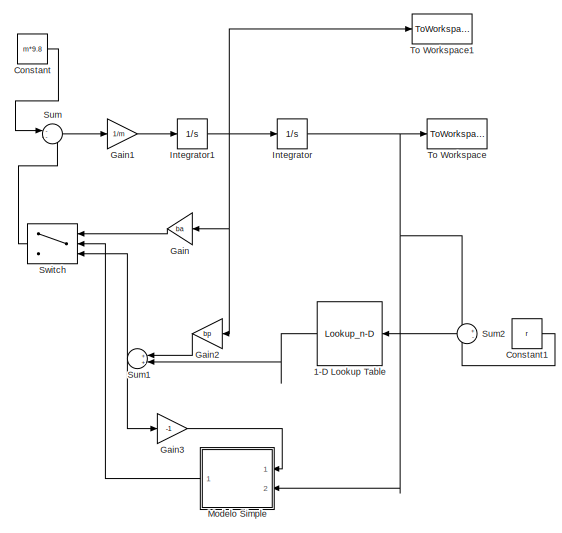
[diagram: root canvas - part 1/2, top left region]
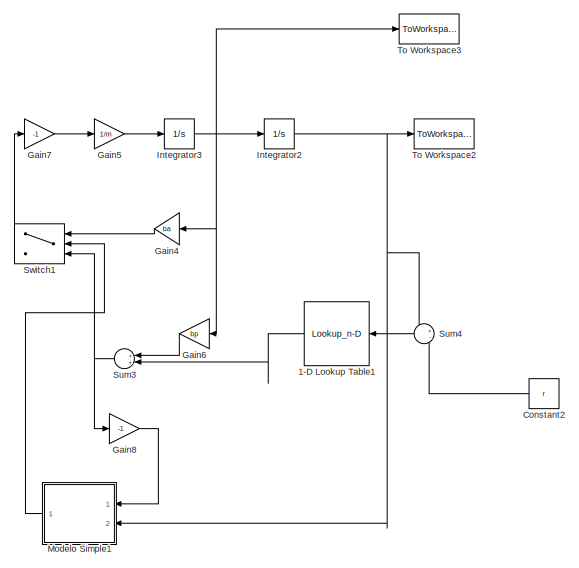
[diagram: root canvas - part 2/2, bottom right region]
MODEL slx_423f4728fc1e
KIND model
CONFIG AbsTol = auto
CONFIG EnableMultiTasking = on
CONFIG FixedStep = auto
CONFIG MaxStep = auto
CONFIG MinStep = auto
CONFIG RelTol = 1e-3
CONFIG SampleTimeConstraint = Unconstrained
CONFIG Solver = VariableStepAuto
CONFIG SolverName = VariableStepAuto
CONFIG StartTime = 0.0
CONFIG StopTime = 5
BLOCK [Lookup_n-D] 1-D Lookup Table
  BreakpointsForDimension1 = [0.000152979,0.000299869,0.000439218,0.000573908,0.000701165,0.000827118,0.000954278,0.001083536,0.001209584,0.001340158,0.001478477,0.00161775,0.001752221,0.001887395,0.002024889]
  InternalRulePriority = Speed
  NumberOfTableDimensions = 1
  Ports = [1, 1]
  RndMeth = Simplest
  Table = [0.0686,0.4214,1.029,1.8424,3.0282,4.4492,6.0564,7.84,10.241,12.74,14.798,16.905,19.6392,22.344,24.843]
BLOCK [Lookup_n-D] 1-D Lookup Table1
  BreakpointsForDimension1 = [0.000152979,0.000299869,0.000439218,0.000573908,0.000701165,0.000827118,0.000954278,0.001083536,0.001209584,0.001340158,0.001478477,0.00161775,0.001752221,0.001887395,0.002024889]
  InternalRulePriority = Speed
  NumberOfTableDimensions = 1
  Ports = [1, 1]
  RndMeth = Simplest
  Table = [0.0686,0.4214,1.029,1.8424,3.0282,4.4492,6.0564,7.84,10.241,12.74,14.798,16.905,19.6392,22.344,24.843]
BLOCK [Constant] Constant
  Value = m*9.8
BLOCK [Constant] Constant1
  Value = r
BLOCK [Constant] Constant2
  Value = r
BLOCK [Gain] Gain
  Gain = ba
  OutDataTypeStr = Inherit: Inherit via internal rule
  ParamDataTypeStr = Inherit: Inherit via internal rule
  SaturateOnIntegerOverflow = off
BLOCK [Gain] Gain1
  Gain = 1/m
  OutDataTypeStr = Inherit: Inherit via internal rule
  ParamDataTypeStr = Inherit: Inherit via internal rule
  SaturateOnIntegerOverflow = off
BLOCK [Gain] Gain2
  Gain = bp
  OutDataTypeStr = Inherit: Inherit via internal rule
  ParamDataTypeStr = Inherit: Inherit via internal rule
  SaturateOnIntegerOverflow = off
BLOCK [Gain] Gain3
  Gain = -1
  OutDataTypeStr = Inherit: Inherit via internal rule
  ParamDataTypeStr = Inherit: Inherit via internal rule
  SaturateOnIntegerOverflow = off
BLOCK [Gain] Gain4
  Gain = ba
  OutDataTypeStr = Inherit: Inherit via internal rule
  ParamDataTypeStr = Inherit: Inherit via internal rule
  SaturateOnIntegerOverflow = off
BLOCK [Gain] Gain5
  Gain = 1/m
  OutDataTypeStr = Inherit: Inherit via internal rule
  ParamDataTypeStr = Inherit: Inherit via internal rule
  SaturateOnIntegerOverflow = off
BLOCK [Gain] Gain6
  Gain = bp
  OutDataTypeStr = Inherit: Inherit via internal rule
  ParamDataTypeStr = Inherit: Inherit via internal rule
  SaturateOnIntegerOverflow = off
BLOCK [Gain] Gain7
  Gain = -1
  OutDataTypeStr = Inherit: Inherit via internal rule
  ParamDataTypeStr = Inherit: Inherit via internal rule
  SaturateOnIntegerOverflow = off
BLOCK [Gain] Gain8
  Gain = -1
  OutDataTypeStr = Inherit: Inherit via internal rule
  ParamDataTypeStr = Inherit: Inherit via internal rule
  SaturateOnIntegerOverflow = off
BLOCK [Integrator] Integrator
  InitialCondition = y0
  Ports = [1, 1]
BLOCK [Integrator] Integrator1
  Ports = [1, 1]
BLOCK [Integrator] Integrator2
  InitialCondition = x0
  Ports = [1, 1]
BLOCK [Integrator] Integrator3
  InitialCondition = v0x
  Ports = [1, 1]
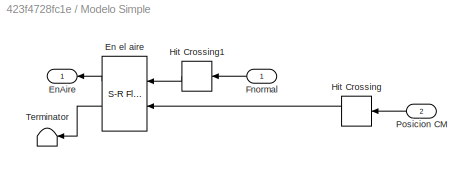
BLOCK [SubSystem] Modelo Simple
  Ports = [2, 1]
  RequestExecContextInheritance = off
BLOCK [Reference] Modelo Simple/En el aire  REF=simulink_extras/Flip Flops/S-R
Flip-Flop
  Ports = [2, 2]
  SourceBlock = simulink_extras/Flip Flops/S-R\nFlip-Flop
  SourceProductBaseCode = SL
  SourceProductName = Simulink
  SourceType = SRFlipFlop
BLOCK [Outport] Modelo Simple/EnAire
  IconDisplay = Port number
BLOCK [Inport] Modelo Simple/Fnormal
  IconDisplay = Port number
BLOCK [HitCross] Modelo Simple/Hit Crossing
  HitCrossingDirection = falling
  HitCrossingOffset = r
  Ports = [1, 1]
BLOCK [HitCross] Modelo Simple/Hit Crossing1
  HitCrossingDirection = falling
  Ports = [1, 1]
BLOCK [Inport] Modelo Simple/Posicion CM
  IconDisplay = Port number
  Port = 2
BLOCK [Terminator] Modelo Simple/Terminator
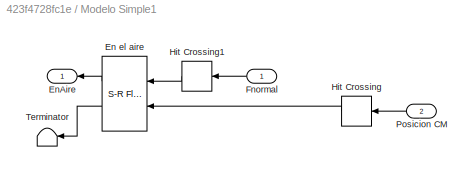
BLOCK [SubSystem] Modelo Simple1
  Ports = [2, 1]
  RequestExecContextInheritance = off
BLOCK [Reference] Modelo Simple1/En el aire  REF=simulink_extras/Flip Flops/S-R
Flip-Flop
  Ports = [2, 2]
  SourceBlock = simulink_extras/Flip Flops/S-R\nFlip-Flop
  SourceProductBaseCode = SL
  SourceProductName = Simulink
  SourceType = SRFlipFlop
BLOCK [Outport] Modelo Simple1/EnAire
  IconDisplay = Port number
BLOCK [Inport] Modelo Simple1/Fnormal
  IconDisplay = Port number
BLOCK [HitCross] Modelo Simple1/Hit Crossing
  HitCrossingDirection = falling
  HitCrossingOffset = r
  Ports = [1, 1]
BLOCK [HitCross] Modelo Simple1/Hit Crossing1
  HitCrossingDirection = falling
  Ports = [1, 1]
BLOCK [Inport] Modelo Simple1/Posicion CM
  IconDisplay = Port number
  Port = 2
BLOCK [Terminator] Modelo Simple1/Terminator
BLOCK [Sum] Sum
  IconShape = round
  InputSameDT = off
  Inputs = --
  OutDataTypeStr = Inherit: Inherit via internal rule
  Ports = [2, 1]
  SaturateOnIntegerOverflow = off
BLOCK [Sum] Sum1
  IconShape = round
  InputSameDT = off
  OutDataTypeStr = Inherit: Inherit via internal rule
  Ports = [2, 1]
  SaturateOnIntegerOverflow = off
BLOCK [Sum] Sum2
  IconShape = round
  InputSameDT = off
  Inputs = +-
  OutDataTypeStr = Inherit: Inherit via internal rule
  Ports = [2, 1]
  SaturateOnIntegerOverflow = off
BLOCK [Sum] Sum3
  IconShape = round
  InputSameDT = off
  OutDataTypeStr = Inherit: Inherit via internal rule
  Ports = [2, 1]
  SaturateOnIntegerOverflow = off
BLOCK [Sum] Sum4
  IconShape = round
  InputSameDT = off
  Inputs = +-
  OutDataTypeStr = Inherit: Inherit via internal rule
  Ports = [2, 1]
  SaturateOnIntegerOverflow = off
BLOCK [Switch] Switch
  Criteria = u2 > Threshold
  InputSameDT = off
  SaturateOnIntegerOverflow = off
BLOCK [Switch] Switch1
  Criteria = u2 > Threshold
  InputSameDT = off
  SaturateOnIntegerOverflow = off
BLOCK [ToWorkspace] To Workspace
  FixptAsFi = on
  MaxDataPoints = inf
  Ports = [1]
  SampleTime = 0.001
  SaveFormat = Structure With Time
  VariableName = y
BLOCK [ToWorkspace] To Workspace1
  FixptAsFi = on
  MaxDataPoints = inf
  Ports = [1]
  SampleTime = 0.001
  SaveFormat = Structure With Time
  VariableName = vy
BLOCK [ToWorkspace] To Workspace2
  FixptAsFi = on
  MaxDataPoints = inf
  Ports = [1]
  SampleTime = 0.001
  SaveFormat = Structure With Time
  VariableName = x
BLOCK [ToWorkspace] To Workspace3
  FixptAsFi = on
  MaxDataPoints = inf
  Ports = [1]
  SampleTime = 0.001
  SaveFormat = Structure With Time
  VariableName = vx
LINE 1-D Lookup Table1:1 -> Sum3:2
LINE 1-D Lookup Table:1 -> Sum1:2
LINE Constant1:1 -> Sum2:2
LINE Constant2:1 -> Sum4:2
LINE Constant:1 -> Sum:1
LINE Gain1:1 -> Integrator1:1
LINE Gain2:1 -> Sum1:1
LINE Gain3:1 -> Modelo Simple:1
LINE Gain4:1 -> Switch1:1
LINE Gain5:1 -> Integrator3:1
LINE Gain6:1 -> Sum3:1
LINE Gain7:1 -> Gain5:1
LINE Gain8:1 -> Modelo Simple1:1
LINE Gain:1 -> Switch:1
NET Integrator1:1 -> Gain2:1, Gain:1, Integrator:1, To Workspace1:1
NET Integrator2:1 -> Modelo Simple1:2, Sum4:1, To Workspace2:1
NET Integrator3:1 -> Gain4:1, Gain6:1, Integrator2:1, To Workspace3:1
NET Integrator:1 -> Modelo Simple:2, Sum2:1, To Workspace:1
LINE Modelo Simple/En el aire:1 -> Modelo Simple/EnAire:1
LINE Modelo Simple/En el aire:2 -> Modelo Simple/Terminator:1
LINE Modelo Simple/Fnormal:1 -> Modelo Simple/Hit Crossing1:1
LINE Modelo Simple/Hit Crossing1:1 -> Modelo Simple/En el aire:1
LINE Modelo Simple/Hit Crossing:1 -> Modelo Simple/En el aire:2
LINE Modelo Simple/Posicion CM:1 -> Modelo Simple/Hit Crossing:1
LINE Modelo Simple1/En el aire:1 -> Modelo Simple1/EnAire:1
LINE Modelo Simple1/En el aire:2 -> Modelo Simple1/Terminator:1
LINE Modelo Simple1/Fnormal:1 -> Modelo Simple1/Hit Crossing1:1
LINE Modelo Simple1/Hit Crossing1:1 -> Modelo Simple1/En el aire:1
LINE Modelo Simple1/Hit Crossing:1 -> Modelo Simple1/En el aire:2
LINE Modelo Simple1/Posicion CM:1 -> Modelo Simple1/Hit Crossing:1
LINE Modelo Simple1:1 -> Switch1:2
LINE Modelo Simple:1 -> Switch:2
NET Sum1:1 -> Gain3:1, Switch:3
LINE Sum2:1 -> 1-D Lookup Table:1
NET Sum3:1 -> Gain8:1, Switch1:3
LINE Sum4:1 -> 1-D Lookup Table1:1
LINE Sum:1 -> Gain1:1
LINE Switch1:1 -> Gain7:1
LINE Switch:1 -> Sum:2
note: NET lines group one-source signal fan-out (src -> all destinations, sorted); 1:1 wires keep LINE
